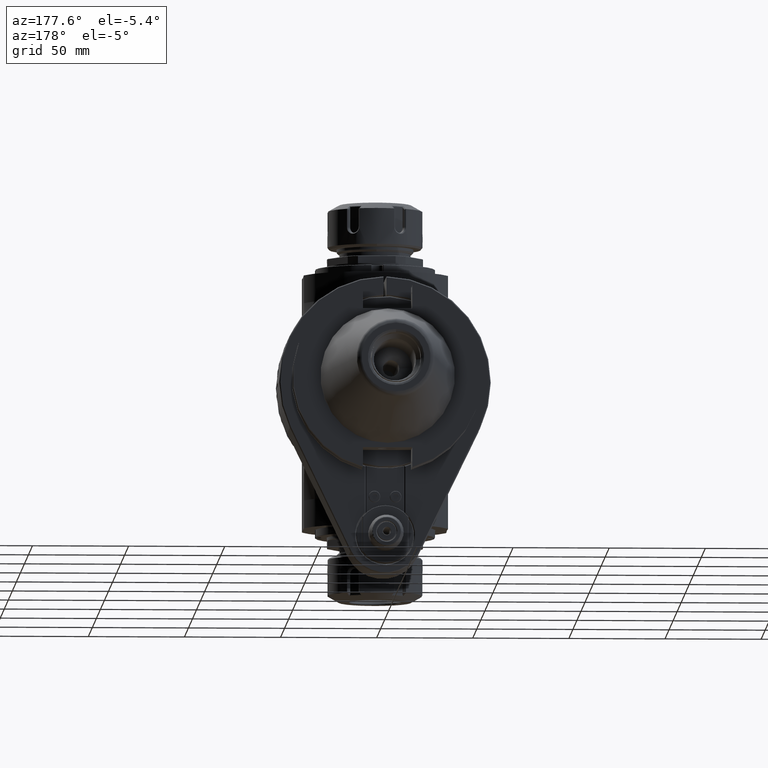
[diagram: clean part render]
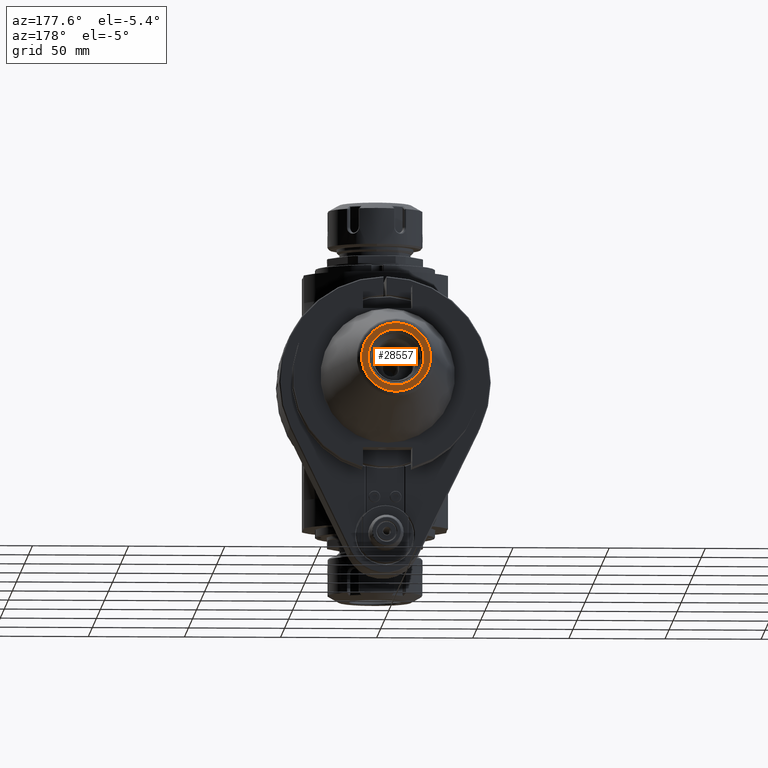
[diagram: same view with one face highlighted and labeled with its STEP entity id]
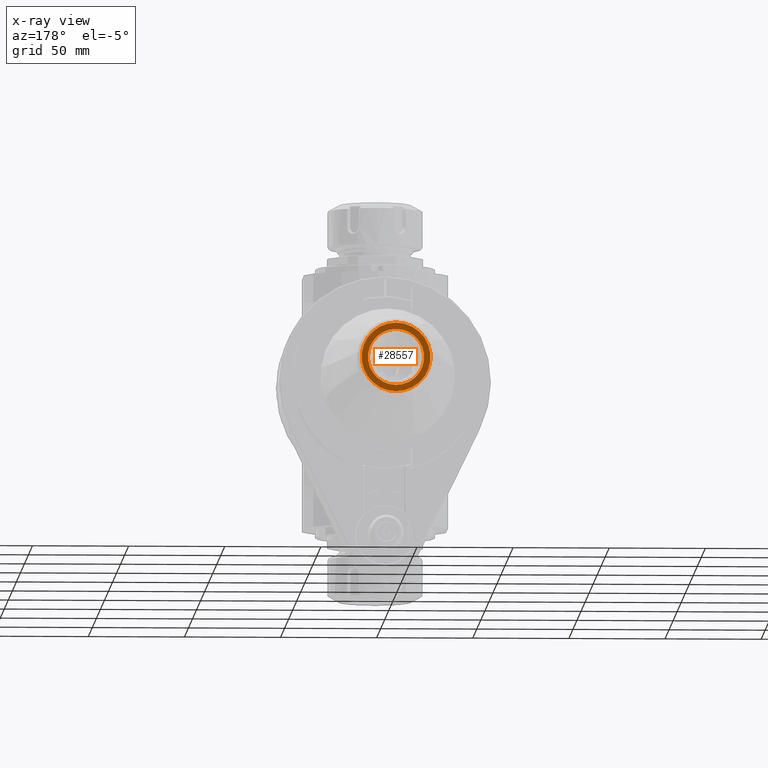
[diagram: x-ray of the same camera — body ghosted, the highlighted face saturated]
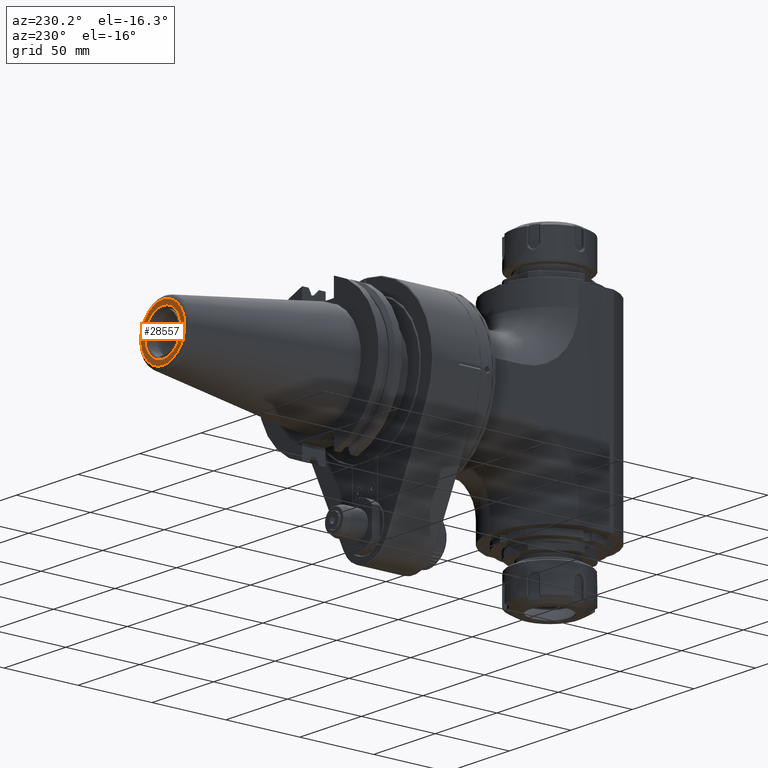
[diagram: same view with one face highlighted and labeled with its STEP entity id]
A machine part, auxiliary view. The second image highlights one B-rep face of the part: STEP entity #28557.
The next image is the same camera in x-ray: the body ghosted, the highlighted face saturated — about 0% of this face is hidden behind the body in this view.
A second angle (auxiliary view) of the same face is appended — the face is thin or edge-on in the first view.
In plain terms, the highlighted planar face has unit normal (0, -1, 0).
Its self-contained STEP definition (entity closure, byte-faithful):
#1333=FACE_BOUND('',#5572,.T.);
#2627=CIRCLE('',#30598,17.91223394038);
#2628=CIRCLE('',#30599,17.91223394038);
#2629=CIRCLE('',#30600,17.91223394038);
#2630=CIRCLE('',#30601,14.60500004308);
#3979=FACE_OUTER_BOUND('',#5571,.T.);
#5571=EDGE_LOOP('',(#21000,#21001,#21002,#21003,#21004));
#5572=EDGE_LOOP('',(#21005));
#7473=LINE('',#43171,#10015);
#7474=LINE('',#43175,#10016);
#10015=VECTOR('',#34545,10.);
#10016=VECTOR('',#34548,10.);
#12617=VERTEX_POINT('',#43167);
#12618=VERTEX_POINT('',#43168);
#12619=VERTEX_POINT('',#43170);
#12620=VERTEX_POINT('',#43172);
#12621=VERTEX_POINT('',#43174);
#12622=VERTEX_POINT('',#43177);
#15732=EDGE_CURVE('',#12617,#12618,#2627,.T.);
#15733=EDGE_CURVE('',#12617,#12619,#7473,.T.);
#15734=EDGE_CURVE('',#12620,#12619,#2628,.T.);
#15735=EDGE_CURVE('',#12620,#12621,#7474,.T.);
#15736=EDGE_CURVE('',#12618,#12621,#2629,.T.);
#15737=EDGE_CURVE('',#12622,#12622,#2630,.T.);
#21000=ORIENTED_EDGE('',*,*,#15732,.F.);
#21001=ORIENTED_EDGE('',*,*,#15733,.T.);
#21002=ORIENTED_EDGE('',*,*,#15734,.F.);
#21003=ORIENTED_EDGE('',*,*,#15735,.T.);
#21004=ORIENTED_EDGE('',*,*,#15736,.F.);
#21005=ORIENTED_EDGE('',*,*,#15737,.F.);
#27492=PLANE('',#30597);
#28557=ADVANCED_FACE('',(#3979,#1333),#27492,.F.);
#30597=AXIS2_PLACEMENT_3D('',#43166,#34541,#34542);
#30598=AXIS2_PLACEMENT_3D('',#43169,#34543,#34544);
#30599=AXIS2_PLACEMENT_3D('',#43173,#34546,#34547);
#30600=AXIS2_PLACEMENT_3D('',#43176,#34549,#34550);
#30601=AXIS2_PLACEMENT_3D('',#43178,#34551,#34552);
#34541=DIRECTION('center_axis',(0.,-1.,0.));
#34542=DIRECTION('ref_axis',(0.,0.,1.));
#34543=DIRECTION('center_axis',(0.,-1.,0.));
#34544=DIRECTION('ref_axis',(1.75257595345894E-6,0.,-0.999999999998464));
#34545=DIRECTION('',(-0.999999956785566,0.,0.000293987868777803));
#34546=DIRECTION('center_axis',(0.,-1.,0.));
#34547=DIRECTION('ref_axis',(-1.75257595345894E-6,0.,0.999999999998464));
#34548=DIRECTION('',(0.999999956785566,0.,-0.000293987868777424));
#34549=DIRECTION('center_axis',(0.,-1.,0.));
#34550=DIRECTION('ref_axis',(1.75257595345894E-6,0.,-0.999999999998464));
#34551=DIRECTION('center_axis',(0.,1.,0.));
#34552=DIRECTION('ref_axis',(1.,0.,-1.089245471655E-11));
#43166=CARTESIAN_POINT('Origin',(0.,169.8,-1.480248809205E-14));
#43167=CARTESIAN_POINT('',(3.13927630431065E-5,169.8,-17.9122334592776));
#43168=CARTESIAN_POINT('',(0.0193558805036644,169.8,17.9122234824376));
#43169=CARTESIAN_POINT('Origin',(0.,169.8,-1.480248809205E-14));
#43170=CARTESIAN_POINT('',(-0.0192756377489765,169.8,-17.9122254355694));
#43171=CARTESIAN_POINT('',(1.046418176462E-5,169.8,-17.91223297205));
#43172=CARTESIAN_POINT('',(-1.04642533628471E-5,169.8,17.9122334562135));
#43173=CARTESIAN_POINT('Origin',(0.,169.8,-1.480248809205E-14));
#43174=CARTESIAN_POINT('',(0.0192756377489965,169.8,17.9122254355693));
#43175=CARTESIAN_POINT('',(-1.046418176949E-5,169.8,17.91223297205));
#43176=CARTESIAN_POINT('Origin',(0.,169.8,-1.480248809205E-14));
#43177=CARTESIAN_POINT('',(1.68876297903313E-14,169.799999963583,14.605000043087));
#43178=CARTESIAN_POINT('Origin',(1.50990331349E-14,169.7999999636,-3.239600770874E-14));